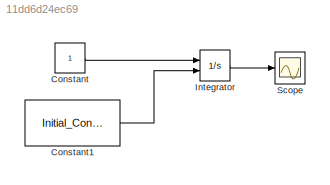
MODEL slx_11dd6d24ec69
KIND model
BLOCK [Constant] Constant
BLOCK [Constant] Constant1
  Value = Initial_Condition
BLOCK [Integrator] Integrator
  InitialCondition = 2
  InitialConditionSource = external
  Ports = [2, 1]
BLOCK [Scope] Scope
  DataFormat = StructureWithTime
  Floating = off
  NumInputPorts = 1
  Ports = [1]
  SampleTime = 0
  ShowLegends = off
LINE Constant1:1 -> Integrator:2
LINE Constant:1 -> Integrator:1
LINE Integrator:1 -> Scope:1
